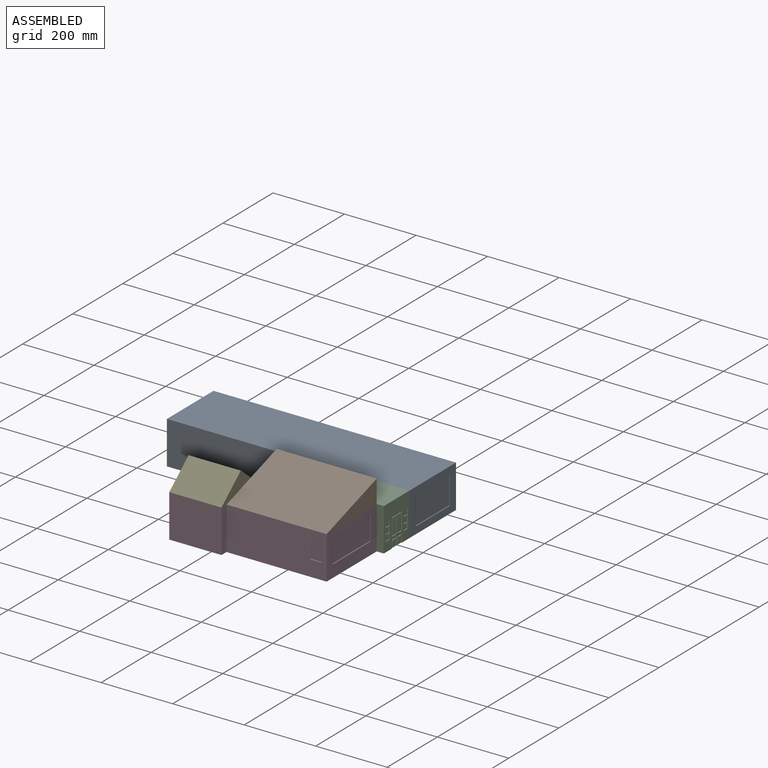
[diagram: assembled view]
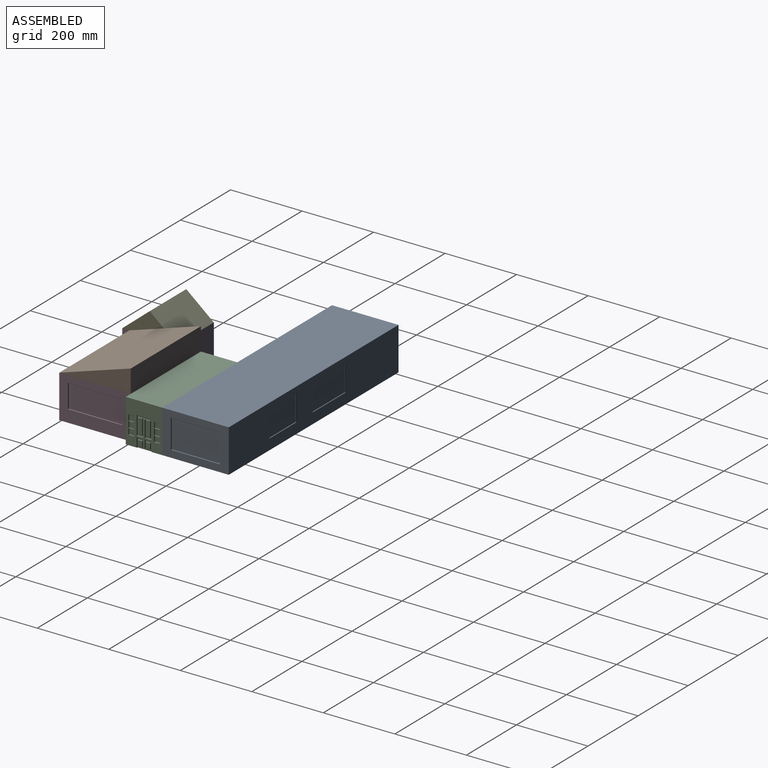
[diagram: assembled view, second angle]
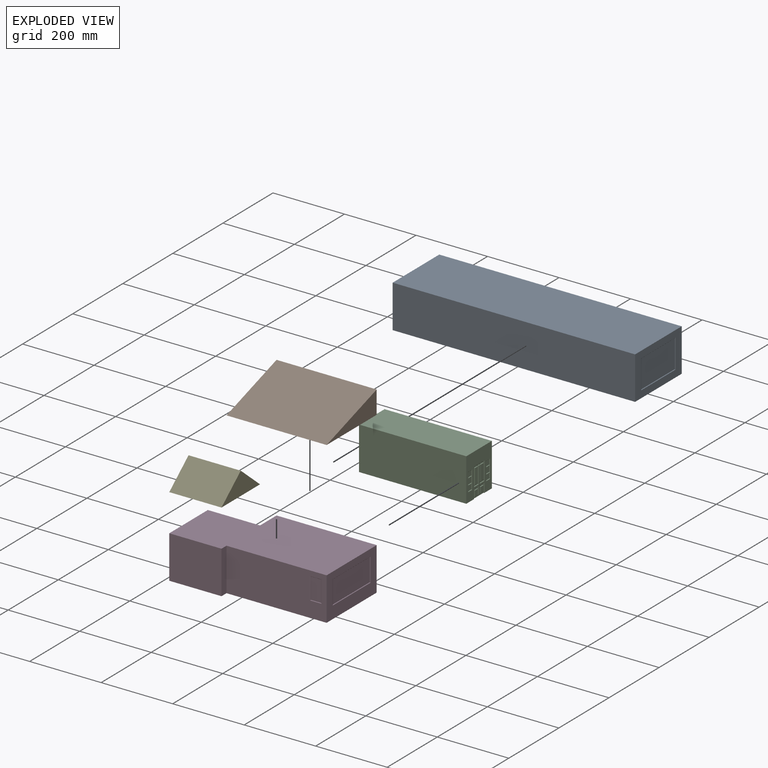
[diagram: exploded view]
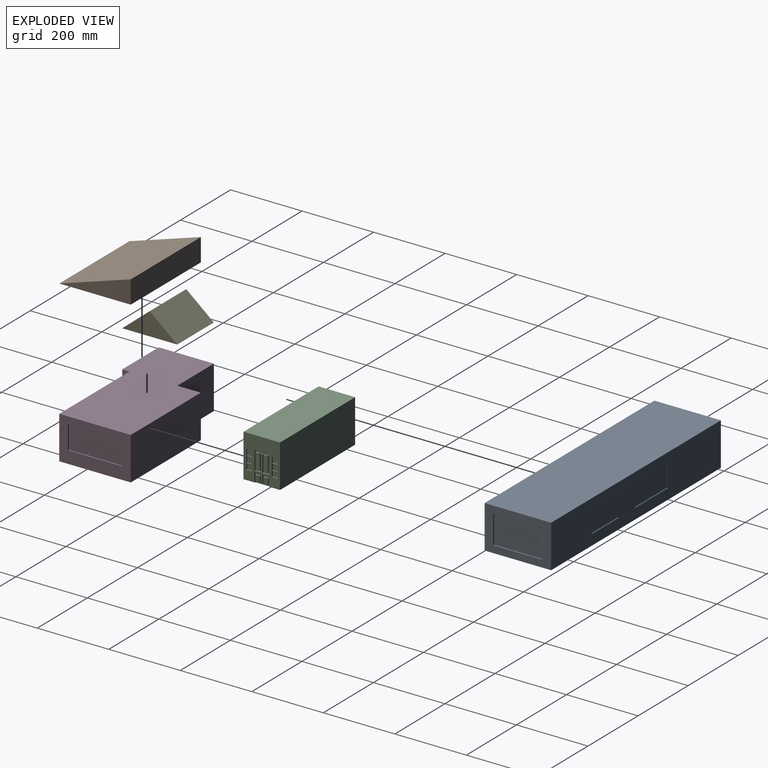
[diagram: exploded view, second angle]
ASSEMBLY  parts=5 mates=4
PART A: 42 faces, bbox 678x186x120 mm
  f0: plane 186x120mm, normal (1,0,0), area 11142mm2, adj f2,f3,f4,f5,f22,f26,f40,f41
  f1: plane 186x120mm, normal (-1,0,0), area 14664mm2, adj f2,f3,f4,f5,f28,f29,f30,f31
  f2: plane 678x120mm, normal (0,1,0), area 64038.3mm2, adj f0,f1,f4,f5,f32,f33,f34,f35
  f3: plane 678x120mm, normal (0,-1,0), area 81360mm2, adj f0,f1,f4,f5
  f4: plane 678x186mm, normal (0,0,1), area 126108mm2, adj f0,f1,f2,f3
  f5: plane 678x186mm, normal (0,0,-1), area 126108mm2, adj f0,f1,f2,f3
  f6: plane 70x1mm, normal (-1,0,0), area 70mm2, adj f7,f9,f10,f32
  f7: plane 130x1mm, normal (0,0,1), area 130mm2, adj f6,f8,f10,f33
  f8: plane 70x1mm, normal (1,0,0), area 70mm2, adj f7,f9,f10,f35
  f9: plane 130x1mm, normal (0,0,-1), area 130mm2, adj f6,f8,f10,f34
  f10: plane 130x70mm, normal (0,1,0), area 9100mm2, adj f6,f7,f8,f9
  f11: plane 70x1mm, normal (-1,0,0), area 70mm2, adj f12,f14,f15,f37
  f12: plane 106.58x1mm, normal (0,0,1), area 106.6mm2, adj f11,f13,f15,f39
  f13: plane 70x1mm, normal (1,0,0), area 70mm2, adj f12,f14,f15,f38
  f14: plane 106.58x1mm, normal (0,0,-1), area 106.6mm2, adj f11,f13,f15,f36
  f15: plane 106.58x70mm, normal (0,1,0), area 7460.5mm2, adj f11,f12,f13,f14
  f16: plane 56x1mm, normal (0,-1,0), area 56mm2, adj f17,f19,f20,f28
  f17: plane 130x1mm, normal (0,0,1), area 130mm2, adj f16,f18,f20,f29
  f18: plane 56x1mm, normal (0,1,0), area 56mm2, adj f17,f19,f20,f31
  f19: plane 130x1mm, normal (0,0,-1), area 130mm2, adj f16,f18,f20,f30
  f20: plane 130x56mm, normal (-1,0,0), area 7280mm2, adj f16,f17,f18,f19
  f21: plane 80x1mm, normal (0,1,0), area 79.8mm2, adj f24,f25,f27,f41
  f22: plane 138x1mm, normal (0,0,1), area 136.4mm2, adj f0,f27,f40,f41
  f23: plane 80x1mm, normal (0,-1,0), area 79.8mm2, adj f24,f25,f27,f40
  f24: plane 136x1mm, normal (0,0,-1), area 136mm2, adj f21,f23,f25,f26
  f25: plane 136x79mm, normal (1,0,0), area 10744mm2, adj f21,f23,f24,f27
  f26: cylinder r=1mm len=138mm, axis (0,1,0), area 214.8mm2, adj f0,f24,f40,f41
  f27: cylinder r=1mm len=136mm, axis (0,1,0), area 213.6mm2, adj f21,f22,f23,f25
  f28: cylinder r=1mm len=58mm, axis (0,0,-1), area 89.1mm2, adj f1,f16,f29,f30
  f29: cylinder r=1mm len=132mm, axis (0,-1,0), area 205.3mm2, adj f1,f17,f28,f31
  f30: cylinder r=1mm len=132mm, axis (0,1,0), area 205.3mm2, adj f1,f19,f28,f31
  f31: cylinder r=1mm len=58mm, axis (0,0,1), area 89.1mm2, adj f1,f18,f29,f30
  f32: cylinder r=1mm len=72mm, axis (0,0,1), area 111.1mm2, adj f2,f6,f33,f34
  f33: cylinder r=1mm len=132mm, axis (1,0,0), area 205.3mm2, adj f2,f7,f32,f35
  f34: cylinder r=1mm len=132mm, axis (-1,0,0), area 205.3mm2, adj f2,f9,f32,f35
  f35: cylinder r=1mm len=72mm, axis (0,0,-1), area 111.1mm2, adj f2,f8,f33,f34
  f36: cylinder r=1mm len=108.58mm, axis (-1,0,0), area 168.6mm2, adj f2,f14,f37,f38
  f37: cylinder r=1mm len=72mm, axis (0,0,1), area 111.1mm2, adj f2,f11,f36,f39
  f38: cylinder r=1mm len=72mm, axis (0,0,-1), area 111.1mm2, adj f2,f13,f36,f39
  f39: cylinder r=1mm len=108.58mm, axis (1,0,0), area 168.6mm2, adj f2,f12,f37,f38
  f40: cylinder r=1mm len=81mm, axis (0,0,-1), area 126.2mm2, adj f0,f22,f23,f26
  f41: cylinder r=1mm len=81mm, axis (0,0,1), area 126.2mm2, adj f0,f21,f22,f26
PART B: 5 faces, bbox 200x280x64 mm
  f0: plane 280x64mm, normal (-1,0,0), area 17920mm2, adj f1,f2,f3,f4
  f1: plane 280x200mm, normal (0,0,-1), area 56000mm2, adj f0,f2,f3,f4
  f2: plane 280x200mm, normal (0.3,0,0.95), area 58797.3mm2, adj f0,f1,f3,f4
  f3: plane 200x64mm, normal (0,-1,0), area 6400mm2, adj f0,f1,f2
  f4: plane 200x64mm, normal (0,1,0), area 6400mm2, adj f0,f1,f2
PART C: 133 faces, bbox 300x102x120 mm
  f0: plane 120x102mm, normal (-1,0,0), area 11696mm2, adj f2,f3,f4,f5,f129,f130,f131,f132
  f1: plane 120x102mm, normal (1,0,0), area 7495.4mm2, adj f2,f3,f4,f5,f77,f78,f79,f80
  f2: plane 300x120mm, normal (0,1,0), area 36000mm2, adj f0,f1,f4,f5
  f3: plane 300x120mm, normal (0,-1,0), area 36000mm2, adj f0,f1,f4,f5
  f4: plane 300x102mm, normal (0,0,1), area 30600mm2, adj f0,f1,f2,f3
  f5: plane 300x102mm, normal (0,0,-1), area 30519.5mm2, adj f0,f1,f2,f3,f15,f16,f21,f93
  f6: plane 17x1mm, normal (0,1,0), area 17mm2, adj f7,f20,f21,f89
  f7: plane 13x1mm, normal (0,0,-1), area 13mm2, adj f6,f8,f21,f91
  f8: plane 17x1mm, normal (0,-1,0), area 17mm2, adj f7,f20,f21,f92
  f9: plane 13x1mm, normal (0,0,-1), area 13mm2, adj f10,f18,f21,f103
  f10: plane 17x1mm, normal (0,-1,0), area 17mm2, adj f9,f11,f21,f101
  f11: plane 13x1mm, normal (0,0,1), area 13mm2, adj f10,f18,f21,f100
  f12: plane 5.52x1mm, normal (0,0.03,-1), area 5.5mm2, adj f13,f19,f21,f98
  f13: plane 20.93x1mm, normal (0,-1,0), area 20.9mm2, adj f12,f14,f21,f99
  f14: plane 17x1mm, normal (0,0,-1), area 17mm2, adj f13,f15,f21,f97
  f15: plane 25x1mm, normal (0,1,0), area 25mm2, adj f5,f14,f21,f95
  f16: plane 25.32x1mm, normal (0,-1,0), area 25.3mm2, adj f5,f17,f21,f93
  f17: plane 17.5x1mm, normal (0,0,-1), area 17.5mm2, adj f16,f19,f21,f94
  f18: plane 17x1mm, normal (0,1,0), area 17mm2, adj f9,f11,f21,f102
  f19: plane 21.07x1mm, normal (0,1,0), area 21.1mm2, adj f12,f17,f21,f96
  f20: plane 13x1mm, normal (0,0,1), area 13mm2, adj f6,f8,f21,f90
  f21: plane 40.02x25.32mm, normal (1,0,0), area 449.2mm2, adj f5,f6,f7,f8,f9,f10,f11,f12
  f22: plane 14x1mm, normal (0,0,-1), area 14mm2, adj f23,f25,f26,f114
  f23: plane 15x1mm, normal (0,1,0), area 15mm2, adj f22,f24,f26,f115
  f24: plane 14x1mm, normal (0,0,1), area 14mm2, adj f23,f25,f26,f117
  f25: plane 15x1mm, normal (0,-1,0), area 15mm2, adj f22,f24,f26,f116
  f26: plane 15x14mm, normal (1,0,0), area 210mm2, adj f22,f23,f24,f25
  f27: plane 15x1mm, normal (0,1,0), area 15mm2, adj f28,f30,f31,f112
  f28: plane 14x1mm, normal (0,0,1), area 14mm2, adj f27,f29,f31,f111
  f29: plane 15x1mm, normal (0,-1,0), area 15mm2, adj f28,f30,f31,f113
  f30: plane 14x1mm, normal (0,0,-1), area 14mm2, adj f27,f29,f31,f110
  f31: plane 15x14mm, normal (1,0,0), area 210mm2, adj f27,f28,f29,f30
  f32: plane 15x11mm, normal (1,0,0), area 165mm2, adj f89,f90,f91,f92
  f33: plane 15x11mm, normal (1,0,0), area 165mm2, adj f100,f101,f102,f103
  f34: plane 13x1mm, normal (0,0,1), area 13mm2, adj f35,f49,f50,f73
  f35: plane 43x1mm, normal (0,1,0), area 43mm2, adj f34,f36,f50,f75
  f36: plane 13x1mm, normal (0,0,-1), area 13mm2, adj f35,f49,f50,f76
  f37: plane 43x1mm, normal (0,-1,0), area 42.6mm2, adj f51,f85,f87,f88
  f38: plane 14x1mm, normal (0,0,1), area 13.2mm2, adj f39,f50,f87,f88
  f39: plane 43x1mm, normal (0,1,0), area 43mm2, adj f38,f47,f50,f86
  f40: plane 46.83x1mm, normal (0,-1,0), area 46.8mm2, adj f41,f48,f50,f82
  f41: plane 5.52x1mm, normal (0,0,1), area 5.5mm2, adj f40,f42,f50,f84
  f42: plane 46.83x1mm, normal (0,1,0), area 46.8mm2, adj f41,f43,f50,f83
  f43: plane 17.5x1mm, normal (0,0,1), area 17.5mm2, adj f42,f44,f50,f81
  f44: plane 50.83x1mm, normal (0,-1,0), area 50.8mm2, adj f43,f45,f50,f79
  f45: plane 40.02x1mm, normal (0,0,-1), area 40mm2, adj f44,f46,f50,f77
  f46: plane 50.83x1mm, normal (0,1,0), area 50.8mm2, adj f45,f48,f50,f78
  f47: plane 14x1mm, normal (0,0,-1), area 13.2mm2, adj f39,f50,f85,f88
  f48: plane 17x1mm, normal (0,0,1), area 17mm2, adj f40,f46,f50,f80
  f49: plane 43x1mm, normal (0,-1,0), area 43mm2, adj f34,f36,f50,f74
  f50: plane 50.83x40.02mm, normal (1,0,0), area 614.8mm2, adj f34,f35,f36,f38,f39,f40,f41,f42
  f51: plane 41x12mm, normal (1,0,0), area 492mm2, adj f37,f85,f86,f87
  f52: plane 14.58x1mm, normal (0,1,0), area 14.6mm2, adj f53,f55,f56,f106
  f53: plane 14x1mm, normal (0,0,1), area 14mm2, adj f52,f54,f56,f104
  f54: plane 14.58x1mm, normal (0,-1,0), area 14.6mm2, adj f53,f55,f56,f105
  f55: plane 14x1mm, normal (0,0,-1), area 14mm2, adj f52,f54,f56,f107
  f56: plane 14.58x14mm, normal (1,0,0), area 204.1mm2, adj f52,f53,f54,f55
  f57: plane 16.42x1mm, normal (0,1,0), area 16.4mm2, adj f58,f60,f61,f109
  f58: plane 14x1mm, normal (0,0,1), area 14mm2, adj f57,f59,f61,f107
  f59: plane 16.42x1mm, normal (0,-1,0), area 16.4mm2, adj f58,f60,f61,f108
  f60: plane 14x1mm, normal (0,0,-1), area 14mm2, adj f57,f59,f61,f111
  f61: plane 16.42x14mm, normal (1,0,0), area 229.9mm2, adj f57,f58,f59,f60
  f62: plane 15x1mm, normal (0,-1,0), area 15mm2, adj f63,f65,f66,f123
  f63: plane 14x1mm, normal (0,0,-1), area 14mm2, adj f62,f64,f66,f122
  f64: plane 15x1mm, normal (0,1,0), area 15mm2, adj f63,f65,f66,f121
  f65: plane 14x1mm, normal (0,0,1), area 14mm2, adj f62,f64,f66,f120
  f66: plane 15x14mm, normal (1,0,0), area 210mm2, adj f62,f63,f64,f65
  f67: plane 14x1mm, normal (0,0,-1), area 14mm2, adj f68,f70,f71,f117
  f68: plane 16x1mm, normal (0,1,0), area 16mm2, adj f67,f69,f71,f118
  f69: plane 14x1mm, normal (0,0,1), area 14mm2, adj f68,f70,f71,f122
  f70: plane 16x1mm, normal (0,-1,0), area 16mm2, adj f67,f69,f71,f119
  f71: plane 16x14mm, normal (1,0,0), area 224mm2, adj f67,f68,f69,f70
  f72: plane 41x11mm, normal (1,0,0), area 451mm2, adj f73,f74,f75,f76
  f73: cylinder r=1mm len=13mm, axis (0,1,0), area 19.3mm2, adj f34,f72,f74,f75
  f74: cylinder r=1mm len=43mm, axis (0,0,1), area 66.4mm2, adj f49,f72,f73,f76
  f75: cylinder r=1mm len=43mm, axis (0,0,-1), area 66.4mm2, adj f35,f72,f73,f76
  f76: cylinder r=1mm len=13mm, axis (0,-1,0), area 19.3mm2, adj f36,f72,f74,f75
  f77: cylinder r=1mm len=42.02mm, axis (0,-1,0), area 64mm2, adj f1,f45,f78,f79
  f78: cylinder r=1mm len=52.83mm, axis (0,0,-1), area 81mm2, adj f1,f46,f77,f80
  f79: cylinder r=1mm len=52.83mm, axis (0,0,1), area 81mm2, adj f1,f44,f77,f81
  f80: cylinder r=1mm len=19mm, axis (0,1,0), area 27.8mm2, adj f1,f48,f78,f82
  f81: cylinder r=1mm len=19.5mm, axis (0,1,0), area 28.6mm2, adj f1,f43,f79,f83
  f82: cylinder r=1mm len=47.83mm, axis (0,0,1), area 73.6mm2, adj f1,f40,f80,f84
  f83: cylinder r=1mm len=47.83mm, axis (0,0,-1), area 73.6mm2, adj f1,f42,f81,f84
  f84: cylinder r=1mm len=5.52mm, axis (0,1,0), area 7.5mm2, adj f1,f41,f82,f83
  f85: cylinder r=1mm len=13mm, axis (0,-1,0), area 19.8mm2, adj f37,f47,f51,f86
  f86: cylinder r=1mm len=43mm, axis (0,0,-1), area 66.4mm2, adj f39,f51,f85,f87
  f87: cylinder r=1mm len=13mm, axis (0,1,0), area 19.8mm2, adj f37,f38,f51,f86
  f88: cylinder r=1mm len=43mm, axis (0,0,1), area 67.5mm2, adj f37,f38,f47,f50
  f89: cylinder r=1mm len=17mm, axis (0,0,-1), area 25.6mm2, adj f6,f32,f90,f91
  f90: cylinder r=1mm len=13mm, axis (0,1,0), area 19.3mm2, adj f20,f32,f89,f92
  f91: cylinder r=1mm len=13mm, axis (0,-1,0), area 19.3mm2, adj f7,f32,f89,f92
  f92: cylinder r=1mm len=17mm, axis (0,0,1), area 25.6mm2, adj f8,f32,f90,f91
  f93: cylinder r=1mm len=26.32mm, axis (0,0,1), area 40.3mm2, adj f1,f5,f16,f94
  f94: cylinder r=1mm len=19.5mm, axis (0,-1,0), area 28.6mm2, adj f1,f17,f93,f96
  f95: cylinder r=1mm len=26mm, axis (0,0,-1), area 39.8mm2, adj f1,f5,f15,f97
  f96: cylinder r=1mm len=22.07mm, axis (0,0,-1), area 33.1mm2, adj f1,f19,f94,f98
  f97: cylinder r=1mm len=19mm, axis (0,-1,0), area 27.8mm2, adj f1,f14,f95,f99
  f98: cylinder r=1mm len=5.55mm, axis (0,-1,-0.03), area 7.5mm2, adj f1,f12,f96,f99
  f99: cylinder r=1mm len=21.93mm, axis (0,0,1), area 32.9mm2, adj f1,f13,f97,f98
  f100: cylinder r=1mm len=13mm, axis (0,1,0), area 19.3mm2, adj f11,f33,f101,f102
  f101: cylinder r=1mm len=17mm, axis (0,0,1), area 25.6mm2, adj f10,f33,f100,f103
  f102: cylinder r=1mm len=17mm, axis (0,0,-1), area 25.6mm2, adj f18,f33,f100,f103
  f103: cylinder r=1mm len=13mm, axis (0,-1,0), area 19.3mm2, adj f9,f33,f101,f102
  f104: cylinder r=1mm len=16mm, axis (0,1,0), area 23.1mm2, adj f1,f53,f105,f106
  f105: cylinder r=1mm len=16.58mm, axis (0,0,1), area 24mm2, adj f1,f54,f104,f107
  f106: cylinder r=1mm len=16.58mm, axis (0,0,-1), area 24mm2, adj f1,f52,f104,f107
  f107: cylinder r=1mm len=16mm, axis (0,-1,0), area 46.3mm2, adj f55,f58,f105,f106,f108,f109
  f108: cylinder r=1mm len=18.42mm, axis (0,0,1), area 26.9mm2, adj f1,f59,f107,f111
  f109: cylinder r=1mm len=18.42mm, axis (0,0,-1), area 26.9mm2, adj f1,f57,f107,f111
  f110: cylinder r=1mm len=16mm, axis (0,-1,0), area 23.1mm2, adj f1,f30,f112,f113
  f111: cylinder r=1mm len=16mm, axis (0,-1,0), area 46.3mm2, adj f28,f60,f108,f109,f112,f113
  f112: cylinder r=1mm len=17mm, axis (0,0,-1), area 24.7mm2, adj f1,f27,f110,f111
  f113: cylinder r=1mm len=17mm, axis (0,0,1), area 24.7mm2, adj f1,f29,f110,f111
  f114: cylinder r=1mm len=16mm, axis (0,-1,0), area 23.1mm2, adj f1,f22,f115,f116
  f115: cylinder r=1mm len=17mm, axis (0,0,-1), area 24.7mm2, adj f1,f23,f114,f117
  f116: cylinder r=1mm len=17mm, axis (0,0,1), area 24.7mm2, adj f1,f25,f114,f117
  f117: cylinder r=1mm len=16mm, axis (0,1,0), area 46.3mm2, adj f24,f67,f115,f116,f118,f119
  f118: cylinder r=1mm len=18mm, axis (0,0,-1), area 26.3mm2, adj f1,f68,f117,f122
  f119: cylinder r=1mm len=18mm, axis (0,0,1), area 26.3mm2, adj f1,f70,f117,f122
  f120: cylinder r=1mm len=16mm, axis (0,1,0), area 23.1mm2, adj f1,f65,f121,f123
  f121: cylinder r=1mm len=17mm, axis (0,0,-1), area 24.7mm2, adj f1,f64,f120,f122
  f122: cylinder r=1mm len=16mm, axis (0,1,0), area 46.3mm2, adj f63,f69,f118,f119,f121,f123
  f123: cylinder r=1mm len=17mm, axis (0,0,1), area 24.7mm2, adj f1,f62,f120,f122
  f124: plane 30x1mm, normal (0,0,-1), area 30mm2, adj f125,f127,f128,f129
  f125: plane 15x1mm, normal (0,-1,0), area 15mm2, adj f124,f126,f128,f130
  f126: plane 30x1mm, normal (0,0,1), area 30mm2, adj f125,f127,f128,f132
  f127: plane 15x1mm, normal (0,1,0), area 15mm2, adj f124,f126,f128,f131
  f128: plane 30x15mm, normal (-1,0,0), area 450mm2, adj f124,f125,f126,f127
  f129: cylinder r=1mm len=32mm, axis (0,1,0), area 48.3mm2, adj f0,f124,f130,f131
  f130: cylinder r=1mm len=17mm, axis (0,0,-1), area 24.7mm2, adj f0,f125,f129,f132
  f131: cylinder r=1mm len=17mm, axis (0,0,1), area 24.7mm2, adj f0,f127,f129,f132
  f132: cylinder r=1mm len=32mm, axis (0,-1,0), area 48.3mm2, adj f0,f126,f130,f131
PART D: 53 faces, bbox 426x220x120 mm
  f0: plane 154x120mm, normal (-1,0,0), area 11908mm2, adj f5,f6,f8,f9,f33,f34,f35,f36
  f1: plane 280x120mm, normal (0,-1,0), area 31616mm2, adj f2,f7,f8,f9,f20,f21,f22,f23
  f2: plane 200x120mm, normal (1,0,0), area 13816mm2, adj f1,f3,f8,f9,f24,f25,f26,f27
  f3: plane 280x120mm, normal (0,1,0), area 33600mm2, adj f2,f4,f8,f9
  f4: plane 120x66mm, normal (-1,0,0), area 4518.7mm2, adj f3,f5,f8,f9,f50,f51,f52
  f5: plane 146x120mm, normal (0,1,0), area 17520mm2, adj f0,f4,f8,f9
  f6: plane 146x120mm, normal (0,-1,0), area 17520mm2, adj f0,f7,f8,f9
  f7: plane 120x20mm, normal (1,0,0), area 2400mm2, adj f1,f6,f8,f9
  f8: plane 426x220mm, normal (0,0,1), area 78484mm2, adj f0,f1,f2,f3,f4,f5,f6,f7
  f9: plane 426x220mm, normal (0,0,-1), area 78403.6mm2, adj f0,f1,f2,f3,f4,f5,f6,f7
  f10: plane 150x1mm, normal (0,0,-1), area 150mm2, adj f11,f13,f14,f24
  f11: plane 65x1mm, normal (0,1,0), area 65mm2, adj f10,f12,f14,f25
  f12: plane 150x1mm, normal (0,0,1), area 150mm2, adj f11,f13,f14,f27
  f13: plane 65x1mm, normal (0,-1,0), area 65mm2, adj f10,f12,f14,f26
  f14: plane 150x65mm, normal (1,0,0), area 9750mm2, adj f10,f11,f12,f13
  f15: plane 30x1mm, normal (0,0,1), area 30mm2, adj f16,f18,f19,f20
  f16: plane 60x1mm, normal (-1,0,0), area 60mm2, adj f15,f17,f19,f21
  f17: plane 30x1mm, normal (0,0,-1), area 30mm2, adj f16,f18,f19,f23
  f18: plane 60x1mm, normal (1,0,0), area 60mm2, adj f15,f17,f19,f22
  f19: plane 60x30mm, normal (0,-1,0), area 1800mm2, adj f15,f16,f17,f18
  f20: cylinder r=1mm len=32mm, axis (-1,0,0), area 48.3mm2, adj f1,f15,f21,f22
  f21: cylinder r=1mm len=62mm, axis (0,0,-1), area 95.4mm2, adj f1,f16,f20,f23
  f22: cylinder r=1mm len=62mm, axis (0,0,1), area 95.4mm2, adj f1,f18,f20,f23
  f23: cylinder r=1mm len=32mm, axis (1,0,0), area 48.3mm2, adj f1,f17,f21,f22
  f24: cylinder r=1mm len=152mm, axis (0,-1,0), area 236.8mm2, adj f2,f10,f25,f26
  f25: cylinder r=1mm len=67mm, axis (0,0,-1), area 103.2mm2, adj f2,f11,f24,f27
  f26: cylinder r=1mm len=67mm, axis (0,0,1), area 103.2mm2, adj f2,f13,f24,f27
  f27: cylinder r=1mm len=152mm, axis (0,1,0), area 236.8mm2, adj f2,f12,f25,f26
  f28: plane 60x1mm, normal (0,-1,0), area 60mm2, adj f29,f31,f32,f33
  f29: plane 104x1mm, normal (0,0,1), area 104mm2, adj f28,f30,f32,f34
  f30: plane 60x1mm, normal (0,1,0), area 60mm2, adj f29,f31,f32,f36
  f31: plane 104x1mm, normal (0,0,-1), area 104mm2, adj f28,f30,f32,f35
  f32: plane 104x60mm, normal (-1,0,0), area 6240mm2, adj f28,f29,f30,f31
  f33: cylinder r=1mm len=62mm, axis (0,0,1), area 95.4mm2, adj f0,f28,f34,f35
  f34: cylinder r=1mm len=106mm, axis (0,1,0), area 164.5mm2, adj f0,f29,f33,f36
  f35: cylinder r=1mm len=106mm, axis (0,-1,0), area 164.5mm2, adj f0,f31,f33,f36
  f36: cylinder r=1mm len=62mm, axis (0,0,-1), area 95.4mm2, adj f0,f30,f34,f35
  f37: plane 79.98x1mm, normal (0,1,0), area 80mm2, adj f9,f38,f40,f50
  f38: plane 40x1mm, normal (0,0,-1), area 40mm2, adj f37,f39,f40,f52
  f39: plane 79.98x1mm, normal (0,-1,0), area 80mm2, adj f9,f38,f40,f51
  f40: plane 79.98x40mm, normal (-1,0,0), area 2200.4mm2, adj f9,f37,f38,f39,f44,f46,f47,f49
  f41: plane 36x1mm, normal (0,0,-1), area 35.8mm2, adj f42,f45,f47,f48
  f42: plane 25x1mm, normal (0,-1,0), area 25mm2, adj f41,f43,f45,f49
  f43: plane 36x1mm, normal (0,0,1), area 35.8mm2, adj f42,f45,f46,f48
  f44: plane 27x1mm, normal (0,1,0), area 25.4mm2, adj f40,f46,f47,f48
  f45: plane 35x25mm, normal (-1,0,0), area 875mm2, adj f41,f42,f43,f48
  f46: cylinder r=1mm len=37mm, axis (0,1,0), area 57.1mm2, adj f40,f43,f44,f49
  f47: cylinder r=1mm len=37mm, axis (0,-1,0), area 57.1mm2, adj f40,f41,f44,f49
  f48: cylinder r=1mm len=25mm, axis (0,0,1), area 39.3mm2, adj f41,f43,f44,f45
  f49: cylinder r=1mm len=27mm, axis (0,0,1), area 40.4mm2, adj f40,f42,f46,f47
  f50: cylinder r=1mm len=80.98mm, axis (0,0,-1), area 126.2mm2, adj f4,f9,f37,f52
  f51: cylinder r=1mm len=80.98mm, axis (0,0,1), area 126.2mm2, adj f4,f9,f39,f52
  f52: cylinder r=1mm len=42mm, axis (0,-1,0), area 64mm2, adj f4,f38,f50,f51
PART E: 5 faces, bbox 154x146x63.8 mm
  f0: plane 154x146mm, normal (0,0,-1), area 22484.2mm2, adj f1,f2,f3,f4
  f1: plane 146x77mm, normal (0.64,0,0.77), area 14600mm2, adj f0,f2,f3,f4
  f2: plane 146x77mm, normal (-0.64,0,0.77), area 14600mm2, adj f0,f1,f3,f4
  f3: plane 154x63.8mm, normal (0,-1,0), area 4912.9mm2, adj f0,f1,f2
  f4: plane 154x63.8mm, normal (0,1,0), area 4912.9mm2, adj f0,f1,f2
PLACE A t=(368.95,303.09,260.93)mm
PLACE B rot(axis=(0,0,-1),90deg) t=(453.34,138.75,380.93)mm
PLACE C t=(453.34,-61.25,260.93)mm
PLACE D t=(453.34,-61.25,260.93)mm
PLACE E rot(axis=(0,0,-1),90deg) t=(173.34,-4.25,380.93)mm
MATE fastened B.f1 <-> D.f8  axis (0,0,-1) through (453.34,38.75,380.93)mm
MATE fastened E.f0 <-> D.f8  axis (0,0,-1) through (27.34,-4.25,380.93)mm
MATE fastened D.f3 <-> C.f3  axis (0,1,0) through (173.34,138.75,320.93)mm
MATE fastened C.f2 <-> A.f3  axis (0,1,0) through (473.34,240.75,320.93)mm
